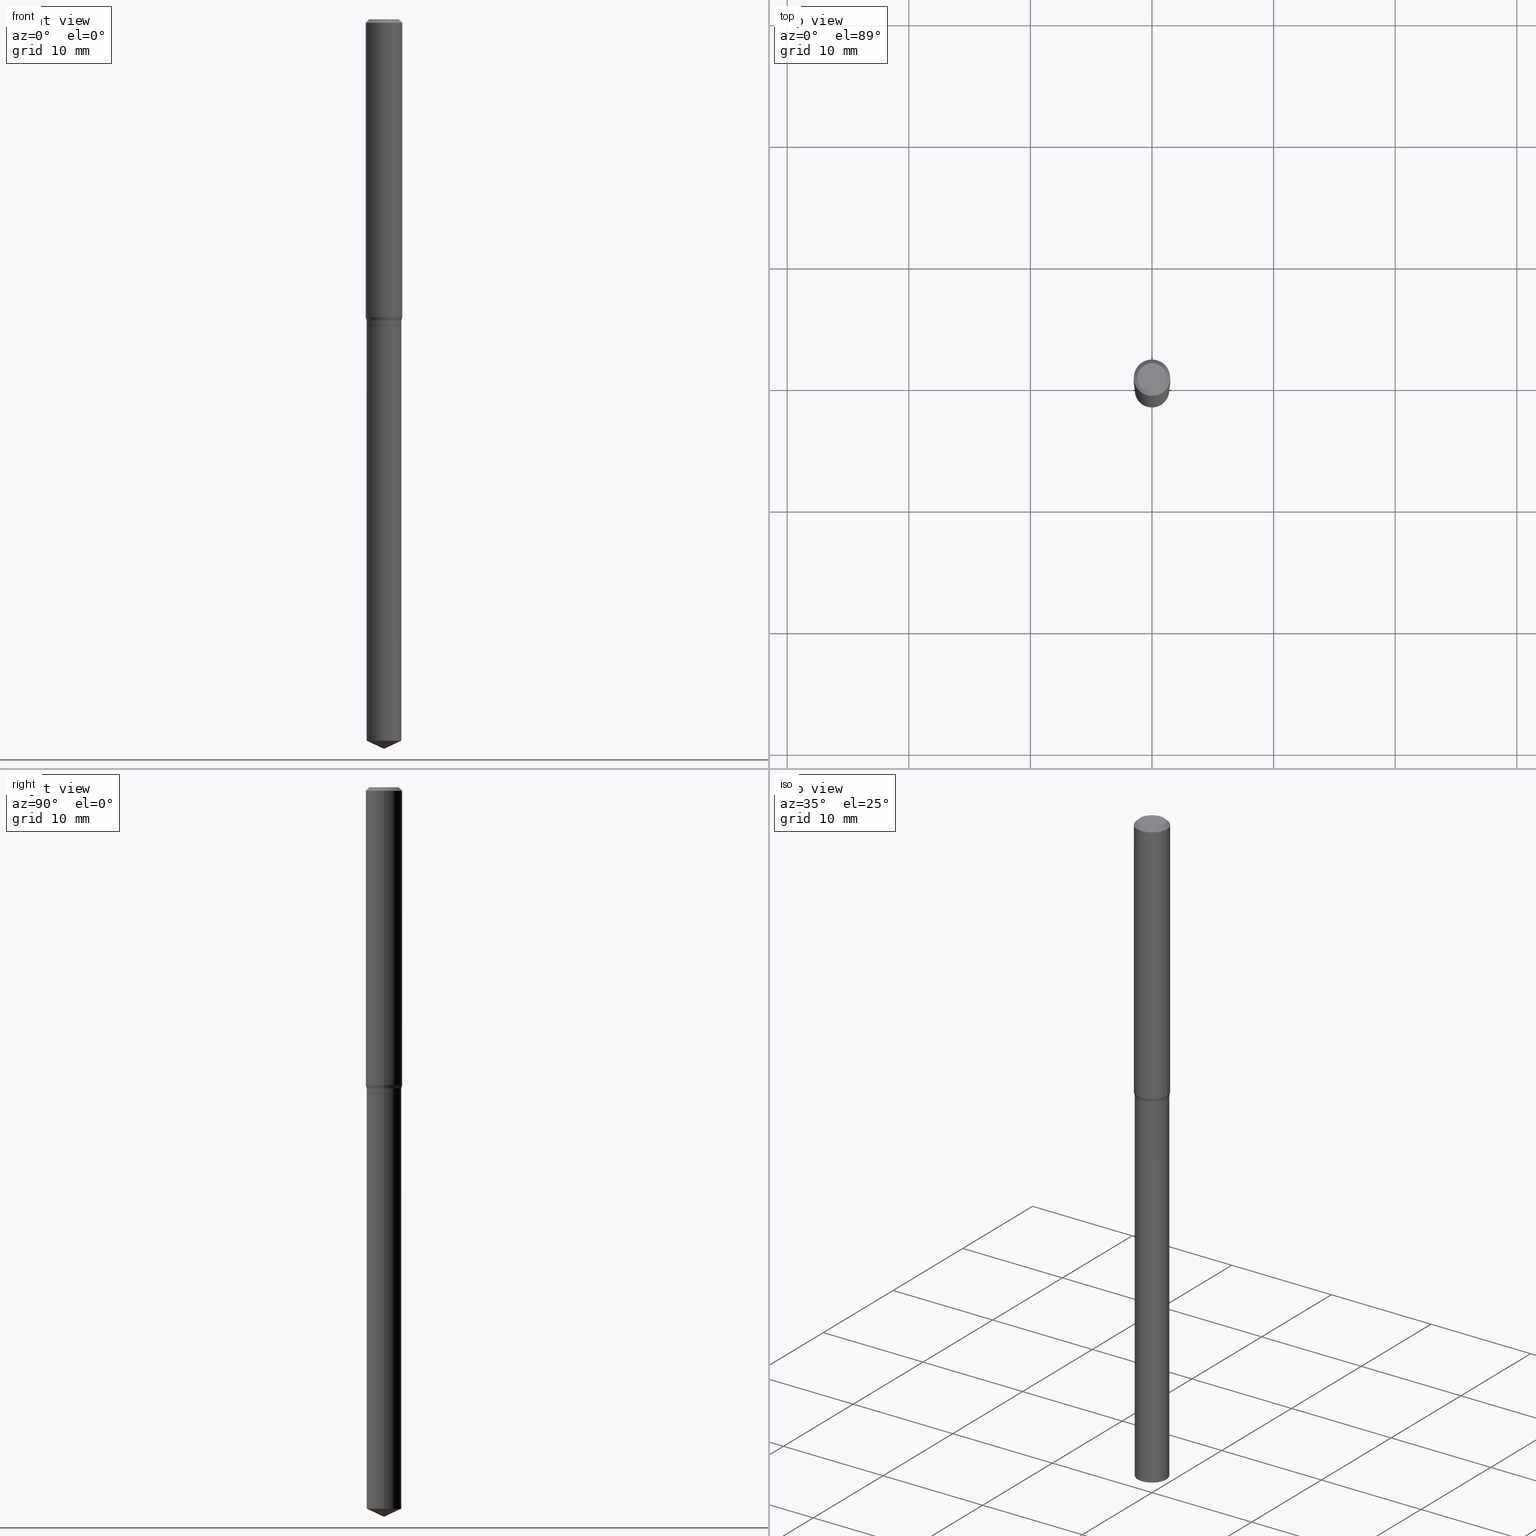
[diagram: canonical four-view strip — front | top / right | iso, engineering-drawing reading convention]
A machine part, canonical four-view strip (front | top / right | iso — engineering-drawing reading convention). The complete STEP part file that produces these views, byte-faithful:
ISO-10303-21;
HEADER;
FILE_DESCRIPTION (( 'STEP AP203' ),
    '1' );
FILE_NAME ('08047.STEP',
    '2024-04-24T09:52:12',
    ( '' ),
    ( '' ),
    'SwSTEP 2.0',
    'SolidWorks 2023',
    '' );
FILE_SCHEMA (( 'CONFIG_CONTROL_DESIGN' ));
ENDSEC;

DATA;
#1 = CC_DESIGN_DATE_AND_TIME_ASSIGNMENT ( #128, #403, ( #139 ) ) ;
#2 = ADVANCED_FACE ( 'NONE', ( #192 ), #109, .T. ) ;
#3 = AXIS2_PLACEMENT_3D ( 'NONE', #183, #222, #197 ) ;
#4 = CARTESIAN_POINT ( 'NONE',  ( 2.385065726672363526E-29, -3.405241749773719756E-15, -0.9752999999999999448 ) ) ;
#5 = CARTESIAN_POINT ( 'NONE',  ( 2.426149602616273641E-29, -3.463898636266284249E-15, -0.9920999999999998709 ) ) ;
#6 = VERTEX_POINT ( 'NONE', #44 ) ;
#7 = VERTEX_POINT ( 'NONE', #344 ) ;
#8 = CC_DESIGN_PERSON_AND_ORGANIZATION_ASSIGNMENT ( #12, #202, ( #311 ) ) ;
#9 = LOCAL_TIME ( 5, 52, 12.00000000000000000, #450 ) ;
#10 = DIRECTION ( 'NONE',  ( -2.445468806185136597E-29, 3.491481338843145583E-15, 1.000000000000000000 ) ) ;
#11 = CONICAL_SURFACE ( 'NONE', #170, 0.05609999999999998321, 0.2617993877991515173 ) ;
#12 = PERSON_AND_ORGANIZATION ( #295, #463 ) ;
#13 = AXIS2_PLACEMENT_3D ( 'NONE', #406, #373, #26 ) ;
#14 = CARTESIAN_POINT ( 'NONE',  ( 2.385065726672363526E-29, -3.405241749773719756E-15, -0.9752999999999999448 ) ) ;
#15 = CARTESIAN_POINT ( 'NONE',  ( -0.05610000000000000403, -5.411455121830015965E-15, -0.9921000000000000929 ) ) ;
#16 = LOCAL_TIME ( 5, 52, 12.00000000000000000, #439 ) ;
#17 = CARTESIAN_POINT ( 'NONE',  ( 2.888098660104664642E-31, -4.123439461173780879E-17, -0.01181000000000007565 ) ) ;
#18 = PRODUCT_DEFINITION ( 'UNKNOWN', '', #151, #79 ) ;
#19 = AXIS2_PLACEMENT_3D ( 'NONE', #209, #221, #372 ) ;
#20 = CARTESIAN_POINT ( 'NONE',  ( 2.426149602616273641E-29, -3.463898636266284249E-15, -0.9920999999999998709 ) ) ;
#21 = ORIENTED_EDGE ( 'NONE', *, *, #275, .T. ) ;
#22 = DIRECTION ( 'NONE',  ( -2.445468806185136597E-29, 3.491481338843145583E-15, 1.000000000000000000 ) ) ;
#23 = ORIENTED_EDGE ( 'NONE', *, *, #172, .F. ) ;
#24 = DIRECTION ( 'NONE',  ( 1.000000000000000000, -6.982962677686258033E-15, 0.000000000000000000 ) ) ;
#25 = CC_DESIGN_APPROVAL ( #306, ( #151 ) ) ;
#26 = DIRECTION ( 'NONE',  ( 1.000000000000000000, -6.982962677686267499E-15, 0.000000000000000000 ) ) ;
#27 = VECTOR ( 'NONE', #474, 39.37007874015748854 ) ;
#28 = DIRECTION ( 'NONE',  ( -2.445468806185136597E-29, 3.491481338843145583E-15, 1.000000000000000000 ) ) ;
#29 = PERSON_AND_ORGANIZATION ( #295, #463 ) ;
#30 = FACE_OUTER_BOUND ( 'NONE', #296, .T. ) ;
#31 = CARTESIAN_POINT ( 'NONE',  ( 0.04724000000000000421, -3.852183633974369345E-16, -3.380025165621689721E-19 ) ) ;
#32 = ORIENTED_EDGE ( 'NONE', *, *, #356, .F. ) ;
#33 = DIRECTION ( 'NONE',  ( 0.2588190451025227379, 1.565188264969610529E-15, 0.9659258262890676461 ) ) ;
#34 = VERTEX_POINT ( 'NONE', #348 ) ;
#35 = CARTESIAN_POINT ( 'NONE',  ( 7.393680447302862572E-30, -5.879465832803107601E-15, -0.9921000000000000929 ) ) ;
#36 = AXIS2_PLACEMENT_3D ( 'NONE', #105, #325, #477 ) ;
#37 = EDGE_CURVE ( 'NONE', #138, #6, #302, .T. ) ;
#38 = DIRECTION ( 'NONE',  ( 1.000000000000000000, -6.982962677686266711E-15, 0.000000000000000000 ) ) ;
#39 = ADVANCED_BREP_SHAPE_REPRESENTATION ( '08047', ( #218, #384, #66 ), #264 ) ;
#40 = APPROVAL_PERSON_ORGANIZATION ( #308, #306, #386 ) ;
#41 = DIRECTION ( 'NONE',  ( -2.445468806185136597E-29, 3.491481338843145583E-15, 1.000000000000000000 ) ) ;
#42 = CIRCLE ( 'NONE', #198, 0.05559999999999999665 ) ;
#43 = EDGE_LOOP ( 'NONE', ( #207, #260, #461, #227 ) ) ;
#44 = CARTESIAN_POINT ( 'NONE',  ( -0.05905000000000011628, -2.947226626344166706E-15, -0.9642904501176713383 ) ) ;
#45 = CC_DESIGN_PERSON_AND_ORGANIZATION_ASSIGNMENT ( #124, #194, ( #151 ) ) ;
#46 = CARTESIAN_POINT ( 'NONE',  ( 2.385065726672363526E-29, -3.405241749773719756E-15, -0.9752999999999999448 ) ) ;
#47 = EDGE_LOOP ( 'NONE', ( #317, #21, #32, #424 ) ) ;
#48 = AXIS2_PLACEMENT_3D ( 'NONE', #104, #136, #290 ) ;
#49 = LINE ( 'NONE', #392, #27 ) ;
#50 = DATE_AND_TIME ( #300, #268 ) ;
#51 = EDGE_CURVE ( 'NONE', #229, #383, #390, .T. ) ;
#52 = DIRECTION ( 'NONE',  ( -0.7071067811866138531, 7.493145998870593974E-15, 0.7071067811864811814 ) ) ;
#53 = CARTESIAN_POINT ( 'NONE',  ( 0.05610000000000000403, -3.855642842484484243E-15, -0.9920999999999998709 ) ) ;
#54 = VERTEX_POINT ( 'NONE', #269 ) ;
#55 = AXIS2_PLACEMENT_3D ( 'NONE', #323, #471, #94 ) ;
#56 = DIRECTION ( 'NONE',  ( -2.445468806185136597E-29, 3.491481338843145583E-15, 1.000000000000000000 ) ) ;
#57 = ORIENTED_EDGE ( 'NONE', *, *, #478, .F. ) ;
#58 = ADVANCED_FACE ( 'NONE', ( #76 ), #129, .T. ) ;
#59 = DIRECTION ( 'NONE',  ( 1.000000000000000000, -6.982962677686266711E-15, 4.876176775795935793E-29 ) ) ;
#60 = DIRECTION ( 'NONE',  ( 0.7071067811866138531, -2.468850131082952047E-15, 0.7071067811864811814 ) ) ;
#61 = LINE ( 'NONE', #137, #470 ) ;
#62 = AXIS2_PLACEMENT_3D ( 'NONE', #443, #287, #368 ) ;
#63 = CARTESIAN_POINT ( 'NONE',  ( -0.05904999999999999832, 3.711095515056362547E-16, -0.01181000000000007565 ) ) ;
#64 = EDGE_LOOP ( 'NONE', ( #405, #224, #142, #447 ) ) ;
#65 = FACE_OUTER_BOUND ( 'NONE', #444, .T. ) ;
#66 = AXIS2_PLACEMENT_3D ( 'NONE', #351, #160, #235 ) ;
#67 = LINE ( 'NONE', #216, #459 ) ;
#68 = LINE ( 'NONE', #250, #257 ) ;
#69 = CIRCLE ( 'NONE', #130, 0.05610000000000000403 ) ;
#70 = ORIENTED_EDGE ( 'NONE', *, *, #144, .F. ) ;
#71 = ORIENTED_EDGE ( 'NONE', *, *, #339, .T. ) ;
#72 = DIRECTION ( 'NONE',  ( 1.000000000000000000, -6.982962677686266711E-15, 0.000000000000000000 ) ) ;
#73 = ADVANCED_FACE ( 'NONE', ( #419 ), #11, .T. ) ;
#74 = AXIS2_PLACEMENT_3D ( 'NONE', #445, #340, #330 ) ;
#75 = ORIENTED_EDGE ( 'NONE', *, *, #85, .T. ) ;
#76 = FACE_OUTER_BOUND ( 'NONE', #234, .T. ) ;
#77 = PERSON_AND_ORGANIZATION_ROLE ( 'creator' ) ;
#78 = EDGE_LOOP ( 'NONE', ( #70, #71, #353, #193 ) ) ;
#79 = DESIGN_CONTEXT ( 'detailed design', #394, 'design' ) ;
#80 = CALENDAR_DATE ( 2024, 24, 4 ) ;
#81 = ORIENTED_EDGE ( 'NONE', *, *, #85, .F. ) ;
#82 = AXIS2_PLACEMENT_3D ( 'NONE', #380, #203, #24 ) ;
#83 = APPROVAL_STATUS ( 'not_yet_approved' ) ;
#84 = EDGE_CURVE ( 'NONE', #7, #34, #400, .T. ) ;
#85 = EDGE_CURVE ( 'NONE', #324, #438, #180, .T. ) ;
#86 = DIRECTION ( 'NONE',  ( 1.000000000000000000, -6.982962677686268288E-15, 0.000000000000000000 ) ) ;
#87 = ORIENTED_EDGE ( 'NONE', *, *, #452, .T. ) ;
#88 = LENGTH_MEASURE_WITH_UNIT ( LENGTH_MEASURE( 0.02539999999999999897 ), #423 );
#89 = CARTESIAN_POINT ( 'NONE',  ( 5.712713293289535621E-29, -8.156240556916579457E-15, -2.336040140377504848 ) ) ;
#90 = ORIENTED_EDGE ( 'NONE', *, *, #256, .T. ) ;
#91 = FACE_OUTER_BOUND ( 'NONE', #78, .T. ) ;
#92 = ORIENTED_EDGE ( 'NONE', *, *, #144, .T. ) ;
#93 = CONICAL_SURFACE ( 'NONE', #231, 0.05559999999999999665, 0.7853981633975420928 ) ;
#94 = DIRECTION ( 'NONE',  ( 1.000000000000000000, -6.982962677686266711E-15, 0.000000000000000000 ) ) ;
#95 = VERTEX_POINT ( 'NONE', #276 ) ;
#96 = CALENDAR_DATE ( 2024, 24, 4 ) ;
#97 = DIRECTION ( 'NONE',  ( -2.445468806185136597E-29, 3.491481338843145583E-15, 1.000000000000000000 ) ) ;
#98 = CARTESIAN_POINT ( 'NONE',  ( 0.05905000000000006077, -4.123439461173744764E-16, 2.879382386107503023E-30 ) ) ;
#99 = EDGE_CURVE ( 'NONE', #138, #184, #404, .T. ) ;
#100 = LINE ( 'NONE', #377, #362 ) ;
#101 = DIRECTION ( 'NONE',  ( -2.445468806185136597E-29, 3.491481338843145583E-15, 1.000000000000000000 ) ) ;
#102 = AXIS2_PLACEMENT_3D ( 'NONE', #115, #225, #119 ) ;
#103 = EDGE_CURVE ( 'NONE', #454, #184, #281, .T. ) ;
#104 = CARTESIAN_POINT ( 'NONE',  ( 0.000000000000000000, 0.000000000000000000, 0.000000000000000000 ) ) ;
#105 = CARTESIAN_POINT ( 'NONE',  ( 2.426149602616273641E-29, -3.463898636266284249E-15, -0.9920999999999998709 ) ) ;
#106 = DIRECTION ( 'NONE',  ( 2.438088387897960049E-29, -3.491481338843145188E-15, -1.000000000000000000 ) ) ;
#107 = DIRECTION ( 'NONE',  ( -2.445468806185136877E-29, 3.491481338843145188E-15, 1.000000000000000000 ) ) ;
#108 = CALENDAR_DATE ( 2024, 24, 4 ) ;
#109 = CONICAL_SURFACE ( 'NONE', #337, 0.05609999999999998321, 0.2617993877991515173 ) ;
#110 = VECTOR ( 'NONE', #354, 39.37007874015748143 ) ;
#111 = ORIENTED_EDGE ( 'NONE', *, *, #51, .F. ) ;
#112 = ORIENTED_EDGE ( 'NONE', *, *, #262, .F. ) ;
#113 = DIMENSIONAL_EXPONENTS ( 1.000000000000000000, 0.000000000000000000, 0.000000000000000000, 0.000000000000000000, 0.000000000000000000, 0.000000000000000000, 0.000000000000000000 ) ;
#114 = AXIS2_PLACEMENT_3D ( 'NONE', #255, #106, #417 ) ;
#115 = CARTESIAN_POINT ( 'NONE',  ( 2.426149602616274201E-29, -3.463898636266285037E-15, -0.9921000000000000929 ) ) ;
#116 = PERSON_AND_ORGANIZATION ( #295, #463 ) ;
#117 = VERTEX_POINT ( 'NONE', #280 ) ;
#118 = PERSON_AND_ORGANIZATION ( #295, #463 ) ;
#119 = DIRECTION ( 'NONE',  ( 1.000000000000000000, -6.982962677686266711E-15, 0.000000000000000000 ) ) ;
#120 = ADVANCED_FACE ( 'NONE', ( #437 ), #154, .T. ) ;
#121 = DIRECTION ( 'NONE',  ( 1.000000000000000000, -6.982962677686266711E-15, 0.000000000000000000 ) ) ;
#122 = VECTOR ( 'NONE', #448, 39.37007874015748143 ) ;
#123 = ORIENTED_EDGE ( 'NONE', *, *, #478, .T. ) ;
#124 = PERSON_AND_ORGANIZATION ( #295, #463 ) ;
#125 = CARTESIAN_POINT ( 'NONE',  ( 0.05905000000000011628, -3.779146057927881513E-15, -0.9642904501176713383 ) ) ;
#126 = CARTESIAN_POINT ( 'NONE',  ( -0.05610000000000000403, -3.065284161504868164E-15, -0.9920999999999998709 ) ) ;
#127 = LINE ( 'NONE', #53, #352 ) ;
#128 = DATE_AND_TIME ( #80, #367 ) ;
#129 = CONICAL_SURFACE ( 'NONE', #451, 0.05904999999999999832, 0.7853981633974450594 ) ;
#130 = AXIS2_PLACEMENT_3D ( 'NONE', #89, #56, #466 ) ;
#131 = FACE_OUTER_BOUND ( 'NONE', #476, .T. ) ;
#132 = LINE ( 'NONE', #126, #345 ) ;
#133 = ORIENTED_EDGE ( 'NONE', *, *, #103, .T. ) ;
#134 = CARTESIAN_POINT ( 'NONE',  ( 2.888098660104664642E-31, -4.123439461173780879E-17, -0.01181000000000007565 ) ) ;
#135 = APPROVAL ( #472, 'UNSPECIFIED' ) ;
#136 = DIRECTION ( 'NONE',  ( -2.445468806185136597E-29, 3.491481338843145583E-15, 1.000000000000000000 ) ) ;
#137 = CARTESIAN_POINT ( 'NONE',  ( -0.05609999999999998321, 3.986144747614160850E-16, -2.759522585633001510E-30 ) ) ;
#138 = VERTEX_POINT ( 'NONE', #125 ) ;
#139 = SECURITY_CLASSIFICATION ( '', '', #267 ) ;
#140 = CONICAL_SURFACE ( 'NONE', #13, 84.42940631927308459, 1.134464013796310233 ) ;
#141 = CARTESIAN_POINT ( 'NONE',  ( 0.05610000000000000403, -3.855642842484484243E-15, -0.9921000000000000929 ) ) ;
#142 = ORIENTED_EDGE ( 'NONE', *, *, #408, .T. ) ;
#143 = CYLINDRICAL_SURFACE ( 'NONE', #48, 0.05905000000000006077 ) ;
#144 = EDGE_CURVE ( 'NONE', #54, #164, #168, .T. ) ;
#145 = COORDINATED_UNIVERSAL_TIME_OFFSET ( 5, 0, .BEHIND. ) ;
#146 = DIRECTION ( 'NONE',  ( -0.9063077870366481603, 7.915267918739014631E-15, 0.4226182617407029940 ) ) ;
#147 = CIRCLE ( 'NONE', #62, 0.04724000000000000421 ) ;
#148 = DIRECTION ( 'NONE',  ( 1.000000000000000000, -6.982962677686269866E-15, 0.000000000000000000 ) ) ;
#149 = EDGE_LOOP ( 'NONE', ( #152, #75, #90, #111 ) ) ;
#150 = EDGE_CURVE ( 'NONE', #273, #117, #219, .T. ) ;
#151 = PRODUCT_DEFINITION_FORMATION_WITH_SPECIFIED_SOURCE ( 'ANY', '', #311, .NOT_KNOWN. ) ;
#152 = ORIENTED_EDGE ( 'NONE', *, *, #205, .F. ) ;
#153 =( NAMED_UNIT ( * ) PLANE_ANGLE_UNIT ( ) SI_UNIT ( $, .RADIAN. ) );
#154 = CONICAL_SURFACE ( 'NONE', #434, 0.05559999999999999665, 0.7853981633975420928 ) ;
#155 = AXIS2_PLACEMENT_3D ( 'NONE', #428, #435, #86 ) ;
#156 = DATE_TIME_ROLE ( 'creation_date' ) ;
#157 = CC_DESIGN_PERSON_AND_ORGANIZATION_ASSIGNMENT ( #118, #77, ( #18 ) ) ;
#158 = ORIENTED_EDGE ( 'NONE', *, *, #301, .F. ) ;
#159 = DIRECTION ( 'NONE',  ( 1.000000000000000000, -6.982962677686266711E-15, 0.000000000000000000 ) ) ;
#160 = DIRECTION ( 'NONE',  ( 0.000000000000000000, 0.000000000000000000, 1.000000000000000000 ) ) ;
#161 = DIRECTION ( 'NONE',  ( 1.000000000000000000, -6.982962677686266711E-15, 0.000000000000000000 ) ) ;
#162 = CIRCLE ( 'NONE', #271, 0.05559999999999999665 ) ;
#163 = FACE_OUTER_BOUND ( 'NONE', #212, .T. ) ;
#164 = VERTEX_POINT ( 'NONE', #165 ) ;
#165 = CARTESIAN_POINT ( 'NONE',  ( -0.05609999999999999015, -3.035082847923874968E-15, -0.9916000000000000369 ) ) ;
#166 = ORIENTED_EDGE ( 'NONE', *, *, #190, .T. ) ;
#167 = APPROVAL_DATE_TIME ( #174, #135 ) ;
#168 = LINE ( 'NONE', #430, #241 ) ;
#169 = ORIENTED_EDGE ( 'NONE', *, *, #279, .F. ) ;
#170 = AXIS2_PLACEMENT_3D ( 'NONE', #46, #41, #195 ) ;
#171 = FACE_OUTER_BOUND ( 'NONE', #47, .T. ) ;
#172 = EDGE_CURVE ( 'NONE', #7, #6, #49, .T. ) ;
#173 = DIRECTION ( 'NONE',  ( 1.000000000000000000, -6.982962677686266711E-15, 0.000000000000000000 ) ) ;
#174 = DATE_AND_TIME ( #96, #16 ) ;
#175 = PLANE ( 'NONE',  #282 ) ;
#176 = DIRECTION ( 'NONE',  ( 1.000000000000000000, -6.982962677686266711E-15, 0.000000000000000000 ) ) ;
#177 = ORIENTED_EDGE ( 'NONE', *, *, #103, .F. ) ;
#178 = DIRECTION ( 'NONE',  ( 1.000000000000000000, -6.982962677686265922E-15, 4.876176775795935793E-29 ) ) ;
#179 = CC_DESIGN_PERSON_AND_ORGANIZATION_ASSIGNMENT ( #116, #425, ( #139 ) ) ;
#180 = CIRCLE ( 'NONE', #82, 0.05610000000000000403 ) ;
#181 = AXIS2_PLACEMENT_3D ( 'NONE', #134, #97, #252 ) ;
#182 = DIRECTION ( 'NONE',  ( -1.000000000000000000, 6.982962677686265922E-15, -4.876176775795935793E-29 ) ) ;
#183 = CARTESIAN_POINT ( 'NONE',  ( 2.888098660104664642E-31, -4.123439461173780879E-17, -0.01181000000000007565 ) ) ;
#184 = VERTEX_POINT ( 'NONE', #319 ) ;
#185 = COORDINATED_UNIVERSAL_TIME_OFFSET ( 5, 0, .BEHIND. ) ;
#186 = CARTESIAN_POINT ( 'NONE',  ( -9.050161304213721862E-28, 1.292123180114298104E-13, 37.00787874015748002 ) ) ;
#187 = EDGE_CURVE ( 'NONE', #383, #229, #226, .T. ) ;
#188 = CARTESIAN_POINT ( 'NONE',  ( 2.888098660104664642E-31, -4.123439461173780879E-17, -0.01181000000000007565 ) ) ;
#189 = AXIS2_PLACEMENT_3D ( 'NONE', #357, #402, #159 ) ;
#190 = EDGE_CURVE ( 'NONE', #438, #324, #69, .T. ) ;
#191 = ADVANCED_FACE ( 'NONE', ( #91 ), #93, .T. ) ;
#192 = FACE_OUTER_BOUND ( 'NONE', #333, .T. ) ;
#193 = ORIENTED_EDGE ( 'NONE', *, *, #455, .F. ) ;
#194 = PERSON_AND_ORGANIZATION_ROLE ( 'creator' ) ;
#195 = DIRECTION ( 'NONE',  ( 1.000000000000000000, -6.982962677686269866E-15, 0.000000000000000000 ) ) ;
#196 = MECHANICAL_CONTEXT ( 'NONE', #251, 'mechanical' ) ;
#197 = DIRECTION ( 'NONE',  ( -1.000000000000000000, 6.982962677686266711E-15, 0.000000000000000000 ) ) ;
#198 = AXIS2_PLACEMENT_3D ( 'NONE', #245, #28, #173 ) ;
#199 = EDGE_LOOP ( 'NONE', ( #23, #277, #415, #112 ) ) ;
#200 = PERSON_AND_ORGANIZATION ( #295, #463 ) ;
#201 = DIRECTION ( 'NONE',  ( -2.445468806185136597E-29, 3.491481338843145583E-15, 1.000000000000000000 ) ) ;
#202 = PERSON_AND_ORGANIZATION_ROLE ( 'design_owner' ) ;
#203 = DIRECTION ( 'NONE',  ( -2.445468806185136597E-29, 3.491481338843145583E-15, 1.000000000000000000 ) ) ;
#204 = DIRECTION ( 'NONE',  ( -2.445468806185136877E-29, 3.491481338843145188E-15, 1.000000000000000000 ) ) ;
#205 = EDGE_CURVE ( 'NONE', #324, #229, #132, .T. ) ;
#206 = CIRCLE ( 'NONE', #19, 0.05609999999999998321 ) ;
#207 = ORIENTED_EDGE ( 'NONE', *, *, #275, .F. ) ;
#208 = CARTESIAN_POINT ( 'NONE',  ( 2.358142215864989888E-29, -3.366802111810506988E-15, -0.9642904501176713383 ) ) ;
#209 = CARTESIAN_POINT ( 'NONE',  ( 2.385065726672363526E-29, -3.405241749773719756E-15, -0.9752999999999999448 ) ) ;
#210 = CONICAL_SURFACE ( 'NONE', #248, 84.42940631927308459, 1.134464013796310233 ) ;
#211 = DIRECTION ( 'NONE',  ( -2.445468806185136597E-29, 3.491481338843145583E-15, 1.000000000000000000 ) ) ;
#212 = EDGE_LOOP ( 'NONE', ( #421, #87, #350, #321 ) ) ;
#213 = CARTESIAN_POINT ( 'NONE',  ( 4.128100059404114540E-29, -1.026608713141900424E-15, -0.9921000000000000929 ) ) ;
#214 = CC_DESIGN_PERSON_AND_ORGANIZATION_ASSIGNMENT ( #349, #458, ( #151 ) ) ;
#215 = ORIENTED_EDGE ( 'NONE', *, *, #187, .F. ) ;
#216 = CARTESIAN_POINT ( 'NONE',  ( -0.05905000000000006077, 4.195754854663395916E-16, -2.904631170795524694E-30 ) ) ;
#217 = CARTESIAN_POINT ( 'NONE',  ( -0.05610000000000001097, -7.757626082155164556E-15, -2.336040140377504848 ) ) ;
#218 = MANIFOLD_SOLID_BREP ( 'Body-Move/Copy2[1]', #327 ) ;
#219 = CIRCLE ( 'NONE', #303, 0.04724000000000000421 ) ;
#220 = AXIS2_PLACEMENT_3D ( 'NONE', #409, #211, #486 ) ;
#221 = DIRECTION ( 'NONE',  ( -2.445468806185136597E-29, 3.491481338843145583E-15, 1.000000000000000000 ) ) ;
#222 = DIRECTION ( 'NONE',  ( 2.445468806185136597E-29, -3.491481338843145583E-15, -1.000000000000000000 ) ) ;
#223 = EDGE_CURVE ( 'NONE', #288, #164, #291, .T. ) ;
#224 = ORIENTED_EDGE ( 'NONE', *, *, #483, .T. ) ;
#225 = DIRECTION ( 'NONE',  ( -2.445468806185136597E-29, 3.491481338843145583E-15, 1.000000000000000000 ) ) ;
#226 = CIRCLE ( 'NONE', #55, 0.05610000000000000403 ) ;
#227 = ORIENTED_EDGE ( 'NONE', *, *, #84, .F. ) ;
#228 = ORIENTED_EDGE ( 'NONE', *, *, #483, .F. ) ;
#229 = VERTEX_POINT ( 'NONE', #15 ) ;
#230 = AXIS2_PLACEMENT_3D ( 'NONE', #307, #456, #72 ) ;
#231 = AXIS2_PLACEMENT_3D ( 'NONE', #20, #201, #121 ) ;
#232 = ORIENTED_EDGE ( 'NONE', *, *, #301, .T. ) ;
#233 = CYLINDRICAL_SURFACE ( 'NONE', #381, 0.05609999999999998321 ) ;
#234 = EDGE_LOOP ( 'NONE', ( #228, #329, #305, #133 ) ) ;
#235 = DIRECTION ( 'NONE',  ( 1.000000000000000000, 0.000000000000000000, 0.000000000000000000 ) ) ;
#236 = ADVANCED_FACE ( 'NONE', ( #240 ), #361, .T. ) ;
#237 = ADVANCED_FACE ( 'NONE', ( #315 ), #233, .T. ) ;
#238 = CARTESIAN_POINT ( 'NONE',  ( 0.000000000000000000, 0.000000000000000000, 0.000000000000000000 ) ) ;
#239 = EDGE_LOOP ( 'NONE', ( #166, #304, #215, #341 ) ) ;
#240 = FACE_OUTER_BOUND ( 'NONE', #149, .T. ) ;
#241 = VECTOR ( 'NONE', #52, 39.37007874015748143 ) ;
#242 = DIRECTION ( 'NONE',  ( -2.445468806185136597E-29, 3.491481338843145583E-15, 1.000000000000000000 ) ) ;
#243 = EDGE_LOOP ( 'NONE', ( #266, #378 ) ) ;
#244 = LINE ( 'NONE', #293, #391 ) ;
#245 = CARTESIAN_POINT ( 'NONE',  ( 2.426149602616273641E-29, -3.463898636266284249E-15, -0.9920999999999998709 ) ) ;
#246 = CARTESIAN_POINT ( 'NONE',  ( -0.05904999999999999832, -1.284442767744781879E-15, -0.01181000000000007565 ) ) ;
#247 = CLOSED_SHELL ( 'NONE', ( #120, #334, #258, #2, #347, #237, #73, #473, #58, #322, #407, #191 ) ) ;
#248 = AXIS2_PLACEMENT_3D ( 'NONE', #186, #101, #449 ) ;
#249 = LINE ( 'NONE', #412, #328 ) ;
#250 = CARTESIAN_POINT ( 'NONE',  ( -2.731847993663685378E-16, -8.247577218615278049E-15, -2.362200000000000077 ) ) ;
#251 = APPLICATION_CONTEXT ( 'configuration controlled 3d designs of mechanical parts and assemblies' ) ;
#252 = DIRECTION ( 'NONE',  ( 1.000000000000000000, -6.982962677686266711E-15, 0.000000000000000000 ) ) ;
#253 = ORIENTED_EDGE ( 'NONE', *, *, #99, .T. ) ;
#254 = FACE_OUTER_BOUND ( 'NONE', #239, .T. ) ;
#255 = CARTESIAN_POINT ( 'NONE',  ( 4.132873053354867254E-48, -5.900647395337818946E-34, -1.690012582823346072E-19 ) ) ;
#256 = EDGE_CURVE ( 'NONE', #438, #383, #127, .T. ) ;
#257 = VECTOR ( 'NONE', #146, 39.37007874015748854 ) ;
#258 = ADVANCED_FACE ( 'NONE', ( #163 ), #320, .T. ) ;
#259 = ORIENTED_EDGE ( 'NONE', *, *, #262, .T. ) ;
#260 = ORIENTED_EDGE ( 'NONE', *, *, #455, .T. ) ;
#261 = CONICAL_SURFACE ( 'NONE', #3, 0.05904999999999999832, 0.7853981633974450594 ) ;
#262 = EDGE_CURVE ( 'NONE', #6, #138, #453, .T. ) ;
#263 = DIRECTION ( 'NONE',  ( 2.445468806185136597E-29, -3.491481338843145583E-15, -1.000000000000000000 ) ) ;
#264 =( GEOMETRIC_REPRESENTATION_CONTEXT ( 3 ) GLOBAL_UNCERTAINTY_ASSIGNED_CONTEXT ( ( #299 ) ) GLOBAL_UNIT_ASSIGNED_CONTEXT ( ( #465, #153, #427 ) ) REPRESENTATION_CONTEXT ( 'NONE', 'WORKASPACE' ) );
#265 = COORDINATED_UNIVERSAL_TIME_OFFSET ( 5, 0, .BEHIND. ) ;
#266 = ORIENTED_EDGE ( 'NONE', *, *, #446, .T. ) ;
#267 = SECURITY_CLASSIFICATION_LEVEL ( 'unclassified' ) ;
#268 = LOCAL_TIME ( 5, 52, 12.00000000000000000, #185 ) ;
#269 = CARTESIAN_POINT ( 'NONE',  ( -0.05559999999999999665, -3.066187648009557861E-15, -0.9920999999999998709 ) ) ;
#270 = CARTESIAN_POINT ( 'NONE',  ( 0.05904999999999999832, -4.463468013801466955E-16, -0.01181000000000007565 ) ) ;
#271 = AXIS2_PLACEMENT_3D ( 'NONE', #5, #359, #38 ) ;
#272 = DIRECTION ( 'NONE',  ( 1.000000000000000000, -6.982962677686266711E-15, 4.876185090822587894E-29 ) ) ;
#273 = VERTEX_POINT ( 'NONE', #31 ) ;
#274 = CALENDAR_DATE ( 2024, 24, 4 ) ;
#275 = EDGE_CURVE ( 'NONE', #164, #7, #61, .T. ) ;
#276 = CARTESIAN_POINT ( 'NONE',  ( 0.05559999999999999665, -3.852151361145640447E-15, -0.9920999999999998709 ) ) ;
#277 = ORIENTED_EDGE ( 'NONE', *, *, #84, .T. ) ;
#278 = CARTESIAN_POINT ( 'NONE',  ( 0.000000000000000000, 0.000000000000000000, 0.000000000000000000 ) ) ;
#279 = EDGE_CURVE ( 'NONE', #411, #324, #68, .T. ) ;
#280 = CARTESIAN_POINT ( 'NONE',  ( -0.04724000000000000421, 3.504923541997677355E-16, -3.380025165670481712E-19 ) ) ;
#281 = CIRCLE ( 'NONE', #457, 0.05904999999999999832 ) ;
#282 = AXIS2_PLACEMENT_3D ( 'NONE', #35, #332, #182 ) ;
#283 = SHAPE_DEFINITION_REPRESENTATION ( #316, #39 ) ;
#284 = CARTESIAN_POINT ( 'NONE',  ( 0.05609999999999998321, -3.796985955991919357E-15, -0.9752999999999999448 ) ) ;
#285 = CARTESIAN_POINT ( 'NONE',  ( 2.426149602616273641E-29, -3.463898636266284249E-15, -0.9920999999999998709 ) ) ;
#286 = ORIENTED_EDGE ( 'NONE', *, *, #279, .T. ) ;
#287 = DIRECTION ( 'NONE',  ( -2.445468806185136597E-29, 3.491481338843145583E-15, 1.000000000000000000 ) ) ;
#288 = VERTEX_POINT ( 'NONE', #410 ) ;
#289 = APPROVAL_ROLE ( '' ) ;
#290 = DIRECTION ( 'NONE',  ( 1.000000000000000000, -6.982962677686266711E-15, 4.876176775795935793E-29 ) ) ;
#291 = CIRCLE ( 'NONE', #155, 0.05609999999999999015 ) ;
#292 = ADVANCED_FACE ( 'NONE', ( #487 ), #210, .T. ) ;
#293 = CARTESIAN_POINT ( 'NONE',  ( 0.05559999999999999665, -3.852151361145640447E-15, -0.9920999999999998709 ) ) ;
#294 = PLANE ( 'NONE',  #114 ) ;
#295 = PERSON ( 'UNSPECIFIED', 'UNSPECIFIED', 'UNSPECIFIED', ('UNSPECIFIED'), ('UNSPECIFIED'), ('UNSPECIFIED') ) ;
#296 = EDGE_LOOP ( 'NONE', ( #467, #346 ) ) ;
#297 = CYLINDRICAL_SURFACE ( 'NONE', #36, 0.05610000000000000403 ) ;
#298 = DIRECTION ( 'NONE',  ( -2.445468806185136877E-29, 3.491481338843145188E-15, 1.000000000000000000 ) ) ;
#299 = UNCERTAINTY_MEASURE_WITH_UNIT (LENGTH_MEASURE( 1.000000000000000082E-05 ), #465, 'distance_accuracy_value', 'NONE');
#300 = CALENDAR_DATE ( 2024, 24, 4 ) ;
#301 = EDGE_CURVE ( 'NONE', #95, #54, #42, .T. ) ;
#302 = CIRCLE ( 'NONE', #230, 0.05905000000000011628 ) ;
#303 = AXIS2_PLACEMENT_3D ( 'NONE', #326, #479, #272 ) ;
#304 = ORIENTED_EDGE ( 'NONE', *, *, #205, .T. ) ;
#305 = ORIENTED_EDGE ( 'NONE', *, *, #382, .T. ) ;
#306 = APPROVAL ( #418, 'UNSPECIFIED' ) ;
#307 = CARTESIAN_POINT ( 'NONE',  ( 2.358142215864989888E-29, -3.366802111810506988E-15, -0.9642904501176713383 ) ) ;
#308 = PERSON_AND_ORGANIZATION ( #295, #463 ) ;
#309 = AXIS2_PLACEMENT_3D ( 'NONE', #213, #480, #178 ) ;
#310 = ORIENTED_EDGE ( 'NONE', *, *, #172, .T. ) ;
#311 = PRODUCT ( '08047', '08047', '', ( #196 ) ) ;
#312 = ORIENTED_EDGE ( 'NONE', *, *, #420, .F. ) ;
#313 = LINE ( 'NONE', #270, #110 ) ;
#314 = CC_DESIGN_APPROVAL ( #135, ( #139 ) ) ;
#315 = FACE_OUTER_BOUND ( 'NONE', #43, .T. ) ;
#316 = PRODUCT_DEFINITION_SHAPE ( 'NONE', 'NONE',  #18 ) ;
#317 = ORIENTED_EDGE ( 'NONE', *, *, #223, .T. ) ;
#318 = DATE_AND_TIME ( #108, #9 ) ;
#319 = CARTESIAN_POINT ( 'NONE',  ( 0.05904999999999999832, -4.535783407291118600E-16, -0.01181000000000007565 ) ) ;
#320 = CYLINDRICAL_SURFACE ( 'NONE', #370, 0.05905000000000006077 ) ;
#321 = ORIENTED_EDGE ( 'NONE', *, *, #99, .F. ) ;
#322 = ADVANCED_FACE ( 'NONE', ( #336 ), #294, .F. ) ;
#323 = CARTESIAN_POINT ( 'NONE',  ( 2.426149602616274201E-29, -3.463898636266285037E-15, -0.9921000000000000929 ) ) ;
#324 = VERTEX_POINT ( 'NONE', #217 ) ;
#325 = DIRECTION ( 'NONE',  ( -2.445468806185136597E-29, 3.491481338843145583E-15, 1.000000000000000000 ) ) ;
#326 = CARTESIAN_POINT ( 'NONE',  ( 8.265746106709734507E-48, -1.180129479067563789E-33, -3.380025165646692144E-19 ) ) ;
#327 = CLOSED_SHELL ( 'NONE', ( #397, #343, #292, #236, #460 ) ) ;
#328 = VECTOR ( 'NONE', #393, 39.37007874015748854 ) ;
#329 = ORIENTED_EDGE ( 'NONE', *, *, #446, .F. ) ;
#330 = DIRECTION ( 'NONE',  ( 1.000000000000000000, -6.982962677686266711E-15, 4.876176775795936353E-29 ) ) ;
#331 = ORIENTED_EDGE ( 'NONE', *, *, #452, .F. ) ;
#332 = DIRECTION ( 'NONE',  ( 2.438088387897960049E-29, -3.491481338843145188E-15, -1.000000000000000000 ) ) ;
#333 = EDGE_LOOP ( 'NONE', ( #490, #310, #481, #387 ) ) ;
#334 = ADVANCED_FACE ( 'NONE', ( #374 ), #261, .T. ) ;
#335 = CARTESIAN_POINT ( 'NONE',  ( 5.776686413970529753E-29, -8.247577218615279626E-15, -2.362200000000000077 ) ) ;
#336 = FACE_OUTER_BOUND ( 'NONE', #243, .T. ) ;
#337 = AXIS2_PLACEMENT_3D ( 'NONE', #14, #464, #385 ) ;
#338 = CIRCLE ( 'NONE', #181, 0.05904999999999999832 ) ;
#339 = EDGE_CURVE ( 'NONE', #54, #95, #162, .T. ) ;
#340 = DIRECTION ( 'NONE',  ( -2.445468806185136597E-29, 3.491481338843145583E-15, 1.000000000000000000 ) ) ;
#341 = ORIENTED_EDGE ( 'NONE', *, *, #256, .F. ) ;
#342 = APPLICATION_PROTOCOL_DEFINITION ( 'international standard', 'config_control_design', 1994, #251 ) ;
#343 = ADVANCED_FACE ( 'NONE', ( #65 ), #140, .T. ) ;
#344 = CARTESIAN_POINT ( 'NONE',  ( -0.05609999999999998321, -3.035082847923874968E-15, -0.9752999999999999448 ) ) ;
#345 = VECTOR ( 'NONE', #395, 39.37007874015748143 ) ;
#346 = ORIENTED_EDGE ( 'NONE', *, *, #51, .T. ) ;
#347 = ADVANCED_FACE ( 'NONE', ( #171 ), #371, .T. ) ;
#348 = CARTESIAN_POINT ( 'NONE',  ( 0.05609999999999998321, -3.796985955991919357E-15, -0.9752999999999999448 ) ) ;
#349 = PERSON_AND_ORGANIZATION ( #295, #463 ) ;
#350 = ORIENTED_EDGE ( 'NONE', *, *, #408, .F. ) ;
#351 = CARTESIAN_POINT ( 'NONE',  ( 0.000000000000000000, 0.000000000000000000, 0.000000000000000000 ) ) ;
#352 = VECTOR ( 'NONE', #204, 39.37007874015748143 ) ;
#353 = ORIENTED_EDGE ( 'NONE', *, *, #420, .T. ) ;
#354 = DIRECTION ( 'NONE',  ( 0.7071067811865452413, -7.319954787623248157E-15, -0.7071067811865497932 ) ) ;
#355 = APPROVAL ( #83, 'UNSPECIFIED' ) ;
#356 = EDGE_CURVE ( 'NONE', #34, #7, #206, .T. ) ;
#357 = CARTESIAN_POINT ( 'NONE',  ( 2.426149602616273641E-29, -3.463898636266284249E-15, -0.9920999999999998709 ) ) ;
#358 = APPROVAL_ROLE ( '' ) ;
#359 = DIRECTION ( 'NONE',  ( -2.445468806185136597E-29, 3.491481338843145583E-15, 1.000000000000000000 ) ) ;
#360 = APPROVAL_PERSON_ORGANIZATION ( #29, #135, #289 ) ;
#361 = CYLINDRICAL_SURFACE ( 'NONE', #189, 0.05610000000000000403 ) ;
#362 = VECTOR ( 'NONE', #107, 39.37007874015748143 ) ;
#363 = DIRECTION ( 'NONE',  ( 1.000000000000000000, -6.982962677686266711E-15, 0.000000000000000000 ) ) ;
#364 = DIRECTION ( 'NONE',  ( -2.445468806185136877E-29, 3.491481338843145188E-15, 1.000000000000000000 ) ) ;
#365 = ORIENTED_EDGE ( 'NONE', *, *, #190, .F. ) ;
#366 = DIRECTION ( 'NONE',  ( -2.445468806185136597E-29, 3.491481338843145583E-15, 1.000000000000000000 ) ) ;
#367 = LOCAL_TIME ( 5, 52, 12.00000000000000000, #265 ) ;
#368 = DIRECTION ( 'NONE',  ( 1.000000000000000000, -6.982962677686266711E-15, 4.876185090822587894E-29 ) ) ;
#369 = EDGE_CURVE ( 'NONE', #34, #138, #484, .T. ) ;
#370 = AXIS2_PLACEMENT_3D ( 'NONE', #278, #242, #59 ) ;
#371 = CYLINDRICAL_SURFACE ( 'NONE', #74, 0.05609999999999998321 ) ;
#372 = DIRECTION ( 'NONE',  ( 1.000000000000000000, -6.982962677686269866E-15, 0.000000000000000000 ) ) ;
#373 = DIRECTION ( 'NONE',  ( -2.445468806185136597E-29, 3.491481338843145583E-15, 1.000000000000000000 ) ) ;
#374 = FACE_OUTER_BOUND ( 'NONE', #64, .T. ) ;
#375 = VECTOR ( 'NONE', #364, 39.37007874015748143 ) ;
#376 = CIRCLE ( 'NONE', #220, 0.05609999999999999015 ) ;
#377 = CARTESIAN_POINT ( 'NONE',  ( 0.05609999999999998321, -3.917442062181994524E-16, 2.735535171221519422E-30 ) ) ;
#378 = ORIENTED_EDGE ( 'NONE', *, *, #150, .T. ) ;
#379 = APPROVAL_DATE_TIME ( #318, #306 ) ;
#380 = CARTESIAN_POINT ( 'NONE',  ( 5.712713293289535621E-29, -8.156240556916579457E-15, -2.336040140377504848 ) ) ;
#381 = AXIS2_PLACEMENT_3D ( 'NONE', #238, #398, #475 ) ;
#382 = EDGE_CURVE ( 'NONE', #117, #454, #416, .T. ) ;
#383 = VERTEX_POINT ( 'NONE', #141 ) ;
#384 = MANIFOLD_SOLID_BREP ( 'Body-Move/Copy2[2]', #247 ) ;
#385 = DIRECTION ( 'NONE',  ( 1.000000000000000000, -6.982962677686269866E-15, 0.000000000000000000 ) ) ;
#386 = APPROVAL_ROLE ( '' ) ;
#387 = ORIENTED_EDGE ( 'NONE', *, *, #369, .F. ) ;
#388 = CC_DESIGN_DATE_AND_TIME_ASSIGNMENT ( #50, #156, ( #18 ) ) ;
#389 = EDGE_CURVE ( 'NONE', #288, #34, #100, .T. ) ;
#390 = CIRCLE ( 'NONE', #102, 0.05610000000000000403 ) ;
#391 = VECTOR ( 'NONE', #60, 39.37007874015748143 ) ;
#392 = CARTESIAN_POINT ( 'NONE',  ( -0.05609999999999998321, -3.006627275012303671E-15, -0.9752999999999999448 ) ) ;
#393 = DIRECTION ( 'NONE',  ( 0.9063077870366481603, -4.853149677051354335E-15, 0.4226182617407029940 ) ) ;
#394 = APPLICATION_CONTEXT ( 'configuration controlled 3d designs of mechanical parts and assemblies' ) ;
#395 = DIRECTION ( 'NONE',  ( -2.445468806185136877E-29, 3.491481338843145188E-15, 1.000000000000000000 ) ) ;
#396 = APPLICATION_PROTOCOL_DEFINITION ( 'international standard', 'config_control_design', 1994, #394 ) ;
#397 = ADVANCED_FACE ( 'NONE', ( #254 ), #297, .T. ) ;
#398 = DIRECTION ( 'NONE',  ( -2.445468806185136597E-29, 3.491481338843145583E-15, 1.000000000000000000 ) ) ;
#399 = EDGE_LOOP ( 'NONE', ( #232, #92, #442, #312 ) ) ;
#400 = CIRCLE ( 'NONE', #469, 0.05609999999999998321 ) ;
#401 = AXIS2_PLACEMENT_3D ( 'NONE', #208, #366, #176 ) ;
#402 = DIRECTION ( 'NONE',  ( -2.445468806185136597E-29, 3.491481338843145583E-15, 1.000000000000000000 ) ) ;
#403 = DATE_TIME_ROLE ( 'classification_date' ) ;
#404 = LINE ( 'NONE', #98, #375 ) ;
#405 = ORIENTED_EDGE ( 'NONE', *, *, #150, .F. ) ;
#406 = CARTESIAN_POINT ( 'NONE',  ( -9.050161304213721862E-28, 1.292123180114298104E-13, 37.00787874015748002 ) ) ;
#407 = ADVANCED_FACE ( 'NONE', ( #131 ), #436, .F. ) ;
#408 = EDGE_CURVE ( 'NONE', #184, #454, #338, .T. ) ;
#409 = CARTESIAN_POINT ( 'NONE',  ( 2.424926868213181400E-29, -3.462152895596863139E-15, -0.9916000000000000369 ) ) ;
#410 = CARTESIAN_POINT ( 'NONE',  ( 0.05609999999999999015, -3.853897101815062740E-15, -0.9916000000000000369 ) ) ;
#411 = VERTEX_POINT ( 'NONE', #335 ) ;
#412 = CARTESIAN_POINT ( 'NONE',  ( 2.731847993664840566E-16, -8.247577218615281204E-15, -2.362200000000000077 ) ) ;
#413 = CARTESIAN_POINT ( 'NONE',  ( 0.05610000000000001097, -8.547984763134780636E-15, -2.336040140377504848 ) ) ;
#414 = PRODUCT_RELATED_PRODUCT_CATEGORY ( 'detail', '', ( #311 ) ) ;
#415 = ORIENTED_EDGE ( 'NONE', *, *, #369, .T. ) ;
#416 = LINE ( 'NONE', #63, #122 ) ;
#417 = DIRECTION ( 'NONE',  ( -1.000000000000000000, 6.982962677686265922E-15, -4.876176775795935793E-29 ) ) ;
#418 = APPROVAL_STATUS ( 'not_yet_approved' ) ;
#419 = FACE_OUTER_BOUND ( 'NONE', #199, .T. ) ;
#420 = EDGE_CURVE ( 'NONE', #95, #288, #244, .T. ) ;
#421 = ORIENTED_EDGE ( 'NONE', *, *, #37, .T. ) ;
#422 = DIRECTION ( 'NONE',  ( -1.000000000000000000, 6.982962677686266711E-15, 0.000000000000000000 ) ) ;
#423 =( LENGTH_UNIT ( ) NAMED_UNIT ( * ) SI_UNIT ( $, .METRE. ) );
#424 = ORIENTED_EDGE ( 'NONE', *, *, #389, .F. ) ;
#425 = PERSON_AND_ORGANIZATION_ROLE ( 'classification_officer' ) ;
#426 = ORIENTED_EDGE ( 'NONE', *, *, #339, .F. ) ;
#427 =( NAMED_UNIT ( * ) SI_UNIT ( $, .STERADIAN. ) SOLID_ANGLE_UNIT ( ) );
#428 = CARTESIAN_POINT ( 'NONE',  ( 2.424926868213181400E-29, -3.462152895596863139E-15, -0.9916000000000000369 ) ) ;
#429 = EDGE_LOOP ( 'NONE', ( #169, #123, #81 ) ) ;
#430 = CARTESIAN_POINT ( 'NONE',  ( -0.05559999999999999665, -3.068836875183668668E-15, -0.9920999999999998709 ) ) ;
#431 = EDGE_LOOP ( 'NONE', ( #331, #259, #253, #177 ) ) ;
#432 = CC_DESIGN_SECURITY_CLASSIFICATION ( #139, ( #151 ) ) ;
#433 = DIRECTION ( 'NONE',  ( -2.445468806185136597E-29, 3.491481338843145583E-15, 1.000000000000000000 ) ) ;
#434 = AXIS2_PLACEMENT_3D ( 'NONE', #285, #433, #363 ) ;
#435 = DIRECTION ( 'NONE',  ( -2.445468806185136597E-29, 3.491481338843145583E-15, 1.000000000000000000 ) ) ;
#436 = PLANE ( 'NONE',  #309 ) ;
#437 = FACE_OUTER_BOUND ( 'NONE', #399, .T. ) ;
#438 = VERTEX_POINT ( 'NONE', #413 ) ;
#439 = COORDINATED_UNIVERSAL_TIME_OFFSET ( 5, 0, .BEHIND. ) ;
#440 = LOCAL_TIME ( 5, 52, 12.00000000000000000, #145 ) ;
#441 = DIRECTION ( 'NONE',  ( -2.445468806185136877E-29, 3.491481338843145188E-15, 1.000000000000000000 ) ) ;
#442 = ORIENTED_EDGE ( 'NONE', *, *, #223, .F. ) ;
#443 = CARTESIAN_POINT ( 'NONE',  ( 8.265746106709734507E-48, -1.180129479067563789E-33, -3.380025165646692144E-19 ) ) ;
#444 = EDGE_LOOP ( 'NONE', ( #57, #286, #365 ) ) ;
#445 = CARTESIAN_POINT ( 'NONE',  ( 0.000000000000000000, 0.000000000000000000, 0.000000000000000000 ) ) ;
#446 = EDGE_CURVE ( 'NONE', #117, #273, #147, .T. ) ;
#447 = ORIENTED_EDGE ( 'NONE', *, *, #382, .F. ) ;
#448 = DIRECTION ( 'NONE',  ( -0.7071067811865452413, 2.468850131082233000E-15, -0.7071067811865497932 ) ) ;
#449 = DIRECTION ( 'NONE',  ( 1.000000000000000000, -6.982962677686267499E-15, 0.000000000000000000 ) ) ;
#450 = COORDINATED_UNIVERSAL_TIME_OFFSET ( 5, 0, .BEHIND. ) ;
#451 = AXIS2_PLACEMENT_3D ( 'NONE', #188, #263, #422 ) ;
#452 = EDGE_CURVE ( 'NONE', #6, #454, #67, .T. ) ;
#453 = CIRCLE ( 'NONE', #401, 0.05905000000000011628 ) ;
#454 = VERTEX_POINT ( 'NONE', #246 ) ;
#455 = EDGE_CURVE ( 'NONE', #164, #288, #376, .T. ) ;
#456 = DIRECTION ( 'NONE',  ( -2.445468806185136597E-29, 3.491481338843145583E-15, 1.000000000000000000 ) ) ;
#457 = AXIS2_PLACEMENT_3D ( 'NONE', #17, #22, #161 ) ;
#458 = PERSON_AND_ORGANIZATION_ROLE ( 'design_supplier' ) ;
#459 = VECTOR ( 'NONE', #441, 39.37007874015748143 ) ;
#460 = ADVANCED_FACE ( 'NONE', ( #30 ), #175, .F. ) ;
#461 = ORIENTED_EDGE ( 'NONE', *, *, #389, .T. ) ;
#462 = APPROVAL_DATE_TIME ( #468, #355 ) ;
#463 = ORGANIZATION ( 'UNSPECIFIED', 'UNSPECIFIED', '' ) ;
#464 = DIRECTION ( 'NONE',  ( -2.445468806185136597E-29, 3.491481338843145583E-15, 1.000000000000000000 ) ) ;
#465 =( CONVERSION_BASED_UNIT ( 'INCH', #88 ) LENGTH_UNIT ( ) NAMED_UNIT ( #113 ) );
#466 = DIRECTION ( 'NONE',  ( 1.000000000000000000, -6.982962677686258033E-15, 0.000000000000000000 ) ) ;
#467 = ORIENTED_EDGE ( 'NONE', *, *, #187, .T. ) ;
#468 = DATE_AND_TIME ( #274, #440 ) ;
#469 = AXIS2_PLACEMENT_3D ( 'NONE', #4, #10, #148 ) ;
#470 = VECTOR ( 'NONE', #298, 39.37007874015748143 ) ;
#471 = DIRECTION ( 'NONE',  ( -2.445468806185136597E-29, 3.491481338843145583E-15, 1.000000000000000000 ) ) ;
#472 = APPROVAL_STATUS ( 'not_yet_approved' ) ;
#473 = ADVANCED_FACE ( 'NONE', ( #482 ), #143, .T. ) ;
#474 = DIRECTION ( 'NONE',  ( -0.2588190451025227379, 5.211531920934558141E-15, 0.9659258262890676461 ) ) ;
#475 = DIRECTION ( 'NONE',  ( 1.000000000000000000, -6.982962677686266711E-15, 4.876176775795936353E-29 ) ) ;
#476 = EDGE_LOOP ( 'NONE', ( #158, #426 ) ) ;
#477 = DIRECTION ( 'NONE',  ( 1.000000000000000000, -6.982962677686266711E-15, 0.000000000000000000 ) ) ;
#478 = EDGE_CURVE ( 'NONE', #411, #438, #249, .T. ) ;
#479 = DIRECTION ( 'NONE',  ( -2.445468806185136597E-29, 3.491481338843145583E-15, 1.000000000000000000 ) ) ;
#480 = DIRECTION ( 'NONE',  ( -2.438088387897960049E-29, 3.491481338843145188E-15, 1.000000000000000000 ) ) ;
#481 = ORIENTED_EDGE ( 'NONE', *, *, #37, .F. ) ;
#482 = FACE_OUTER_BOUND ( 'NONE', #431, .T. ) ;
#483 = EDGE_CURVE ( 'NONE', #273, #184, #313, .T. ) ;
#484 = LINE ( 'NONE', #284, #485 ) ;
#485 = VECTOR ( 'NONE', #33, 39.37007874015748854 ) ;
#486 = DIRECTION ( 'NONE',  ( 1.000000000000000000, -6.982962677686268288E-15, 0.000000000000000000 ) ) ;
#487 = FACE_OUTER_BOUND ( 'NONE', #429, .T. ) ;
#488 = CC_DESIGN_APPROVAL ( #355, ( #18 ) ) ;
#489 = APPROVAL_PERSON_ORGANIZATION ( #200, #355, #358 ) ;
#490 = ORIENTED_EDGE ( 'NONE', *, *, #356, .T. ) ;
ENDSEC;
END-ISO-10303-21;
